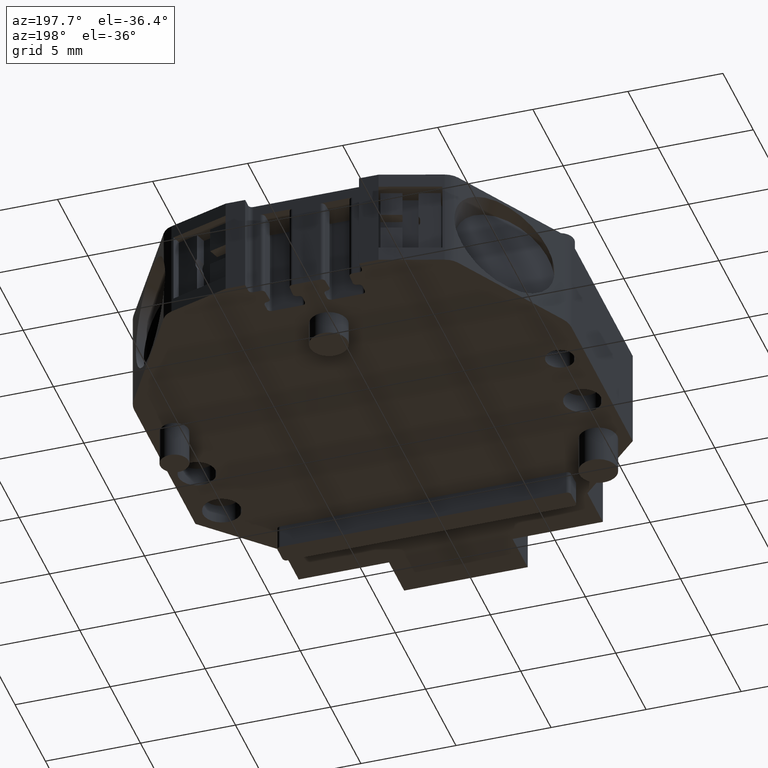
[diagram: clean part render]
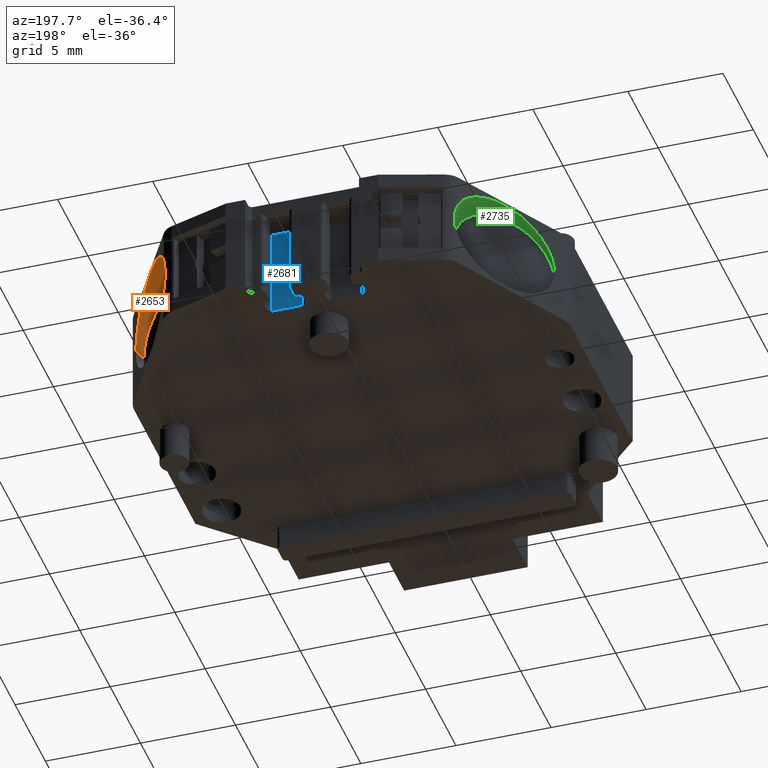
[diagram: same view with three faces highlighted in distinct colors, each labeled with its STEP entity id]
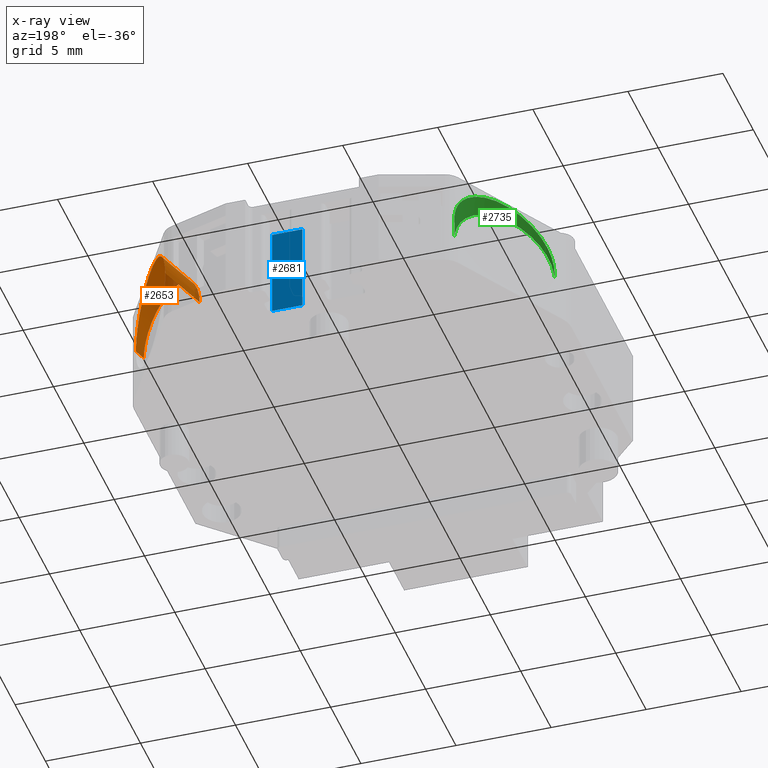
[diagram: x-ray of the same camera — body ghosted, the three highlighted faces saturated]
A machine part, auxiliary view with three faces highlighted in distinct colors.
The next image is the same camera in x-ray (body ghosted, the three faces saturated) — at least one of them is partly hidden behind the body in this view.
Their STEP definitions:

[orange] entity #2653 — the highlighted cylindrical surface (partial cylindrical patch) has radius 2.5 mm, axis along (0.3007, 0.9537, 0).
#11 =( BOUNDED_CURVE ( )  B_SPLINE_CURVE ( 3, ( #2990, #2991, #3003, #3013 ),
 .UNSPECIFIED., .F., .T. ) 
 B_SPLINE_CURVE_WITH_KNOTS ( ( 4, 4 ),
 ( 0.0000000000000000000, 3.141592653589793100 ),
 .UNSPECIFIED. ) 
 CURVE ( )  GEOMETRIC_REPRESENTATION_ITEM ( )  RATIONAL_B_SPLINE_CURVE ( ( 1.000000000000000000, 0.3333333333333333700, 0.3333333333333333700, 1.000000000000000000 ) ) 
 REPRESENTATION_ITEM ( '' )  );
#12 =( BOUNDED_CURVE ( )  B_SPLINE_CURVE ( 3, ( #3124, #3133, #3149, #3134 ),
 .UNSPECIFIED., .F., .T. ) 
 B_SPLINE_CURVE_WITH_KNOTS ( ( 4, 4 ),
 ( 0.3890162787027745000, 3.141592653589793100 ),
 .UNSPECIFIED. ) 
 CURVE ( )  GEOMETRIC_REPRESENTATION_ITEM ( )  RATIONAL_B_SPLINE_CURVE ( ( 1.000000000000000000, 0.4621893152000972100, 0.4621893152000972100, 1.000000000000000000 ) ) 
 REPRESENTATION_ITEM ( '' )  );
#19 = CARTESIAN_POINT ( 'NONE',  ( 299.0290548412494300, 455.5509690692699700, -53.23180405356463800 ) ) ;
#256 = LINE ( 'NONE', #265, #4419 ) ;
#265 = CARTESIAN_POINT ( 'NONE',  ( 304.4442805675182100, 456.7195194426091700, -54.18000000000000000 ) ) ;
#271 = DIRECTION ( 'NONE',  ( 0.3007044655851190400, 0.9537173713302951100, 0.0000000000000000000 ) ) ;
#337 = DIRECTION ( 'NONE',  ( 0.3007044655851190400, 0.9537173713302951100, 0.0000000000000000000 ) ) ;
#356 = LINE ( 'NONE', #361, #4462 ) ;
#361 = CARTESIAN_POINT ( 'NONE',  ( 299.6756937108667100, 458.2230417705347900, -54.18000000000000000 ) ) ;
#818 = EDGE_LOOP ( 'NONE', ( #2175, #2138, #2168, #2158, #2142 ) ) ;
#825 = CARTESIAN_POINT ( 'NONE',  ( 298.8915380709113400, 455.7360056894548300, -54.18000000000000000 ) ) ;
#855 = CARTESIAN_POINT ( 'NONE',  ( 302.0856804516287800, 449.2389590918728600, -54.18000000000000000 ) ) ;
#876 = CARTESIAN_POINT ( 'NONE',  ( 297.9913240521382200, 452.8808776621792700, -54.18000000000000000 ) ) ;
#898 = CARTESIAN_POINT ( 'NONE',  ( 302.2932353997324000, 449.8972424968991400, -54.18000000000000000 ) ) ;
#1724 = VERTEX_POINT ( 'NONE', #825 ) ;
#1725 = VERTEX_POINT ( 'NONE', #876 ) ;
#1734 = VERTEX_POINT ( 'NONE', #855 ) ;
#1775 = VERTEX_POINT ( 'NONE', #898 ) ;
#1960 = VERTEX_POINT ( 'NONE', #19 ) ;
#2138 = ORIENTED_EDGE ( 'NONE', *, *, #2585, .F. ) ;
#2142 = ORIENTED_EDGE ( 'NONE', *, *, #2613, .T. ) ;
#2158 = ORIENTED_EDGE ( 'NONE', *, *, #2632, .F. ) ;
#2168 = ORIENTED_EDGE ( 'NONE', *, *, #2364, .T. ) ;
#2175 = ORIENTED_EDGE ( 'NONE', *, *, #2336, .F. ) ;
#2266 = B_SPLINE_CURVE_WITH_KNOTS ( 'NONE', 3,
 ( #3215, #3211, #3213, #3214, #3181, #3199 ),
 .UNSPECIFIED., .F., .F.,
 ( 4, 2, 4 ),
 ( -0.0009769400087767583300, -0.0004884700043883756900, 6.938893903907228400E-018 ),
 .UNSPECIFIED. ) ;
#2336 = EDGE_CURVE ( 'NONE', #1734, #1775, #256, .T. ) ;
#2364 = EDGE_CURVE ( 'NONE', #1725, #1724, #356, .T. ) ;
#2585 = EDGE_CURVE ( 'NONE', #1725, #1734, #11, .T. ) ;
#2613 = EDGE_CURVE ( 'NONE', #1960, #1775, #12, .T. ) ;
#2632 = EDGE_CURVE ( 'NONE', #1960, #1724, #2266, .T. ) ;
#2653 = ADVANCED_FACE ( 'NONE', ( #3280 ), #3288, .F. ) ;
#2990 = CARTESIAN_POINT ( 'NONE',  ( 297.9913240521382200, 452.8808776621792700, -54.18000000000000000 ) ) ;
#2991 = CARTESIAN_POINT ( 'NONE',  ( 297.9913240521382200, 452.8808776621792700, -49.17999999999997800 ) ) ;
#3003 = CARTESIAN_POINT ( 'NONE',  ( 302.0856804516287200, 449.2389590918728000, -49.17999999999997800 ) ) ;
#3013 = CARTESIAN_POINT ( 'NONE',  ( 302.0856804516287800, 449.2389590918728600, -54.18000000000000000 ) ) ;
#3124 = CARTESIAN_POINT ( 'NONE',  ( 299.0290548412494300, 455.5509690692699700, -53.23180405356463800 ) ) ;
#3133 = CARTESIAN_POINT ( 'NONE',  ( 299.9390914366900300, 453.9747394492199000, -49.95812955358420000 ) ) ;
#3134 = CARTESIAN_POINT ( 'NONE',  ( 302.2932353997324000, 449.8972424968991400, -54.18000000000000000 ) ) ;
#3149 = CARTESIAN_POINT ( 'NONE',  ( 302.2932353997324000, 449.8972424968991400, -50.64197339221040300 ) ) ;
#3181 = CARTESIAN_POINT ( 'NONE',  ( 298.8915380709113400, 455.7360056894548800, -54.01483201357363100 ) ) ;
#3199 = CARTESIAN_POINT ( 'NONE',  ( 298.8915380709113400, 455.7360056894548300, -54.18000000000000000 ) ) ;
#3211 = CARTESIAN_POINT ( 'NONE',  ( 298.9888196379449700, 455.6206584856461700, -53.37654214400964000 ) ) ;
#3213 = CARTESIAN_POINT ( 'NONE',  ( 298.9533747289055400, 455.6648079605344000, -53.53016393471963100 ) ) ;
#3214 = CARTESIAN_POINT ( 'NONE',  ( 298.9045134146838900, 455.7230147341313100, -53.85141387291903200 ) ) ;
#3215 = CARTESIAN_POINT ( 'NONE',  ( 299.0290548412494300, 455.5509690692699700, -53.23180405356463800 ) ) ;
#3280 = FACE_OUTER_BOUND ( 'NONE', #818, .T. ) ;
#3288 = CYLINDRICAL_SURFACE ( 'NONE', #4044, 2.500000000000009800 ) ;
#3293 = DIRECTION ( 'NONE',  ( -0.9537173713302944400, 0.3007044655851209300, 0.0000000000000000000 ) ) ;
#3302 = CARTESIAN_POINT ( 'NONE',  ( 302.0599871391924600, 457.4712806065720100, -54.18000000000000000 ) ) ;
#3312 = DIRECTION ( 'NONE',  ( 0.3007044655851190400, 0.9537173713302952200, 0.0000000000000000000 ) ) ;
#4044 = AXIS2_PLACEMENT_3D ( 'NONE', #3302, #3312, #3293 ) ;
#4419 = VECTOR ( 'NONE', #271, 1000.000000000000100 ) ;
#4462 = VECTOR ( 'NONE', #337, 1000.000000000000100 ) ;

[blue] entity #2681 — the highlighted planar face has unit normal (0, -1, 0).
#215 = DIRECTION ( 'NONE',  ( -1.000000000000000000, -0.0000000000000000000, -0.0000000000000000000 ) ) ;
#216 = LINE ( 'NONE', #218, #4402 ) ;
#218 = CARTESIAN_POINT ( 'NONE',  ( 293.6606835609339900, 454.5052019535990000, -56.83000000000000500 ) ) ;
#228 = DIRECTION ( 'NONE',  ( 1.000000000000000000, 0.0000000000000000000, 0.0000000000000000000 ) ) ;
#239 = LINE ( 'NONE', #245, #4424 ) ;
#245 = CARTESIAN_POINT ( 'NONE',  ( 293.6606835609339900, 454.5052019535990000, -52.10000000000000100 ) ) ;
#294 = LINE ( 'NONE', #316, #4385 ) ;
#304 = DIRECTION ( 'NONE',  ( 0.0000000000000000000, 0.0000000000000000000, -1.000000000000000000 ) ) ;
#308 = DIRECTION ( 'NONE',  ( -0.0000000000000000000, -0.0000000000000000000, 1.000000000000000000 ) ) ;
#312 = CARTESIAN_POINT ( 'NONE',  ( 293.6606835609339900, 454.5052019535990000, -52.10000000000000100 ) ) ;
#316 = CARTESIAN_POINT ( 'NONE',  ( 292.0646318890470100, 454.5052019535990000, -52.10000000000000100 ) ) ;
#325 = LINE ( 'NONE', #312, #4425 ) ;
#707 = EDGE_LOOP ( 'NONE', ( #1518, #1476, #1499, #1505 ) ) ;
#870 = CARTESIAN_POINT ( 'NONE',  ( 292.0646318890470100, 454.5052019535990000, -52.10000000000000100 ) ) ;
#908 = CARTESIAN_POINT ( 'NONE',  ( 293.6606835609339900, 454.5052019535990000, -56.83000000000000500 ) ) ;
#940 = CARTESIAN_POINT ( 'NONE',  ( 293.6606835609339900, 454.5052019535990000, -52.10000000000000100 ) ) ;
#990 = CARTESIAN_POINT ( 'NONE',  ( 292.0646318890470100, 454.5052019535990000, -56.83000000000000500 ) ) ;
#1476 = ORIENTED_EDGE ( 'NONE', *, *, #2349, .T. ) ;
#1499 = ORIENTED_EDGE ( 'NONE', *, *, #2332, .F. ) ;
#1505 = ORIENTED_EDGE ( 'NONE', *, *, #2351, .T. ) ;
#1518 = ORIENTED_EDGE ( 'NONE', *, *, #2331, .F. ) ;
#1721 = VERTEX_POINT ( 'NONE', #870 ) ;
#1783 = VERTEX_POINT ( 'NONE', #940 ) ;
#1808 = VERTEX_POINT ( 'NONE', #908 ) ;
#1834 = VERTEX_POINT ( 'NONE', #990 ) ;
#2331 = EDGE_CURVE ( 'NONE', #1783, #1721, #239, .T. ) ;
#2332 = EDGE_CURVE ( 'NONE', #1834, #1808, #216, .T. ) ;
#2349 = EDGE_CURVE ( 'NONE', #1783, #1808, #325, .T. ) ;
#2351 = EDGE_CURVE ( 'NONE', #1834, #1721, #294, .T. ) ;
#2681 = ADVANCED_FACE ( 'NONE', ( #3451 ), #3453, .F. ) ;
#3451 = FACE_OUTER_BOUND ( 'NONE', #707, .T. ) ;
#3453 = PLANE ( 'NONE',  #4081 ) ;
#3454 = CARTESIAN_POINT ( 'NONE',  ( 293.6606835609339900, 454.5052019535990000, -52.10000000000000100 ) ) ;
#3458 = DIRECTION ( 'NONE',  ( 0.0000000000000000000, -1.000000000000000000, 0.0000000000000000000 ) ) ;
#3461 = DIRECTION ( 'NONE',  ( 0.0000000000000000000, -0.0000000000000000000, -1.000000000000000000 ) ) ;
#4081 = AXIS2_PLACEMENT_3D ( 'NONE', #3454, #3458, #3461 ) ;
#4385 = VECTOR ( 'NONE', #308, 1000.000000000000000 ) ;
#4402 = VECTOR ( 'NONE', #228, 1000.000000000000000 ) ;
#4424 = VECTOR ( 'NONE', #215, 1000.000000000000000 ) ;
#4425 = VECTOR ( 'NONE', #304, 1000.000000000000000 ) ;

[green] entity #2735 — the highlighted cylindrical surface (partial cylindrical patch) has radius 2.5 mm, axis along (-0.3007, 0.9537, 0).
#9 =( BOUNDED_CURVE ( )  B_SPLINE_CURVE ( 3, ( #3027, #3036, #3109, #3094 ),
 .UNSPECIFIED., .F., .T. ) 
 B_SPLINE_CURVE_WITH_KNOTS ( ( 4, 4 ),
 ( 3.141592653589793100, 6.283185307179586200 ),
 .UNSPECIFIED. ) 
 CURVE ( )  GEOMETRIC_REPRESENTATION_ITEM ( )  RATIONAL_B_SPLINE_CURVE ( ( 1.000000000000000000, 0.3333333333333333700, 0.3333333333333333700, 1.000000000000000000 ) ) 
 REPRESENTATION_ITEM ( '' )  );
#14 =( BOUNDED_CURVE ( )  B_SPLINE_CURVE ( 3, ( #4878, #4891, #4888, #4889 ),
 .UNSPECIFIED., .F., .T. ) 
 B_SPLINE_CURVE_WITH_KNOTS ( ( 4, 4 ),
 ( 3.141592653589793100, 5.894169028476591500 ),
 .UNSPECIFIED. ) 
 CURVE ( )  GEOMETRIC_REPRESENTATION_ITEM ( )  RATIONAL_B_SPLINE_CURVE ( ( 1.000000000000000000, 0.4621893152001693200, 0.4621893152001693200, 1.000000000000000000 ) ) 
 REPRESENTATION_ITEM ( '' )  );
#29 = CARTESIAN_POINT ( 'NONE',  ( 283.5428208456533000, 455.5509690692703100, -53.23180405356406200 ) ) ;
#127 = CARTESIAN_POINT ( 'NONE',  ( 282.8961819760363600, 458.2230417705347900, -54.18000000000000000 ) ) ;
#152 = DIRECTION ( 'NONE',  ( -0.3007044655851190400, 0.9537173713302951100, 0.0000000000000000000 ) ) ;
#154 = LINE ( 'NONE', #127, #4350 ) ;
#343 = DIRECTION ( 'NONE',  ( -0.3007044655851190400, 0.9537173713302951100, 0.0000000000000000000 ) ) ;
#347 = CARTESIAN_POINT ( 'NONE',  ( 278.1275951193848600, 456.7195194426091700, -54.18000000000000000 ) ) ;
#368 = LINE ( 'NONE', #347, #4484 ) ;
#827 = CARTESIAN_POINT ( 'NONE',  ( 280.4873932639386000, 449.2351594118571800, -54.18000000000000000 ) ) ;
#858 = CARTESIAN_POINT ( 'NONE',  ( 283.6803376159916200, 455.7360056894552300, -54.18000000000000000 ) ) ;
#881 = EDGE_LOOP ( 'NONE', ( #1113, #1095, #1107, #1100, #1163 ) ) ;
#891 = CARTESIAN_POINT ( 'NONE',  ( 284.1993812299088500, 454.0898016328984600, -54.18000000000000000 ) ) ;
#902 = CARTESIAN_POINT ( 'NONE',  ( 280.2786402871705600, 449.8972424968992500, -54.18000000000000000 ) ) ;
#1095 = ORIENTED_EDGE ( 'NONE', *, *, #2598, .F. ) ;
#1100 = ORIENTED_EDGE ( 'NONE', *, *, #2803, .T. ) ;
#1107 = ORIENTED_EDGE ( 'NONE', *, *, #2366, .T. ) ;
#1113 = ORIENTED_EDGE ( 'NONE', *, *, #2300, .F. ) ;
#1163 = ORIENTED_EDGE ( 'NONE', *, *, #2838, .F. ) ;
#1740 = VERTEX_POINT ( 'NONE', #858 ) ;
#1745 = VERTEX_POINT ( 'NONE', #827 ) ;
#1755 = VERTEX_POINT ( 'NONE', #891 ) ;
#1762 = VERTEX_POINT ( 'NONE', #902 ) ;
#1977 = VERTEX_POINT ( 'NONE', #29 ) ;
#2263 = B_SPLINE_CURVE_WITH_KNOTS ( 'NONE', 3,
 ( #4983, #4997, #4999, #5011, #5000, #5001 ),
 .UNSPECIFIED., .F., .F.,
 ( 4, 2, 4 ),
 ( -6.884683795282953200E-018, 0.0004894244846225604200, 0.0009788489692451277800 ),
 .UNSPECIFIED. ) ;
#2300 = EDGE_CURVE ( 'NONE', #1755, #1740, #154, .T. ) ;
#2366 = EDGE_CURVE ( 'NONE', #1745, #1762, #368, .T. ) ;
#2598 = EDGE_CURVE ( 'NONE', #1745, #1755, #9, .T. ) ;
#2735 = ADVANCED_FACE ( 'NONE', ( #4597 ), #4604, .F. ) ;
#2803 = EDGE_CURVE ( 'NONE', #1762, #1977, #14, .T. ) ;
#2838 = EDGE_CURVE ( 'NONE', #1740, #1977, #2263, .T. ) ;
#3027 = CARTESIAN_POINT ( 'NONE',  ( 280.4873932639386000, 449.2351594118571800, -54.18000000000000000 ) ) ;
#3036 = CARTESIAN_POINT ( 'NONE',  ( 280.4873932639385400, 449.2351594118571800, -49.17999999999997800 ) ) ;
#3094 = CARTESIAN_POINT ( 'NONE',  ( 284.1993812299088500, 454.0898016328984600, -54.18000000000000000 ) ) ;
#3109 = CARTESIAN_POINT ( 'NONE',  ( 284.1993812299088500, 454.0898016328985700, -49.17999999999997800 ) ) ;
#4164 = AXIS2_PLACEMENT_3D ( 'NONE', #4586, #4582, #4618 ) ;
#4350 = VECTOR ( 'NONE', #152, 1000.000000000000100 ) ;
#4484 = VECTOR ( 'NONE', #343, 1000.000000000000100 ) ;
#4582 = DIRECTION ( 'NONE',  ( -0.3007044655851190400, 0.9537173713302952200, 0.0000000000000000000 ) ) ;
#4586 = CARTESIAN_POINT ( 'NONE',  ( 280.5118885477106100, 457.4712806065720100, -54.18000000000000000 ) ) ;
#4597 = FACE_OUTER_BOUND ( 'NONE', #881, .T. ) ;
#4604 = CYLINDRICAL_SURFACE ( 'NONE', #4164, 2.500000000000009800 ) ;
#4618 = DIRECTION ( 'NONE',  ( -0.9537173713302944400, -0.3007044655851209300, 0.0000000000000000000 ) ) ;
#4878 = CARTESIAN_POINT ( 'NONE',  ( 280.2786402871705600, 449.8972424968992500, -54.18000000000000000 ) ) ;
#4888 = CARTESIAN_POINT ( 'NONE',  ( 282.6327842502125200, 453.9747394492192700, -49.95812955358458400 ) ) ;
#4889 = CARTESIAN_POINT ( 'NONE',  ( 283.5428208456533000, 455.5509690692703100, -53.23180405356406200 ) ) ;
#4891 = CARTESIAN_POINT ( 'NONE',  ( 280.2786402871706200, 449.8972424968993100, -50.64197339221104200 ) ) ;
#4983 = CARTESIAN_POINT ( 'NONE',  ( 283.6803376159916200, 455.7360056894552300, -54.18000000000000000 ) ) ;
#4997 = CARTESIAN_POINT ( 'NONE',  ( 283.6803376159915600, 455.7360056894552800, -54.01450927199901000 ) ) ;
#4999 = CARTESIAN_POINT ( 'NONE',  ( 283.6673635588239200, 455.7229853295686400, -53.85213675031654600 ) ) ;
#5000 = CARTESIAN_POINT ( 'NONE',  ( 283.5831247022010200, 455.6207773965518900, -53.37678911031031200 ) ) ;
#5001 = CARTESIAN_POINT ( 'NONE',  ( 283.5428208456533000, 455.5509690692703100, -53.23180405356406200 ) ) ;
#5011 = CARTESIAN_POINT ( 'NONE',  ( 283.6191780985236100, 455.6656451189232400, -53.53391149787143600 ) ) ;